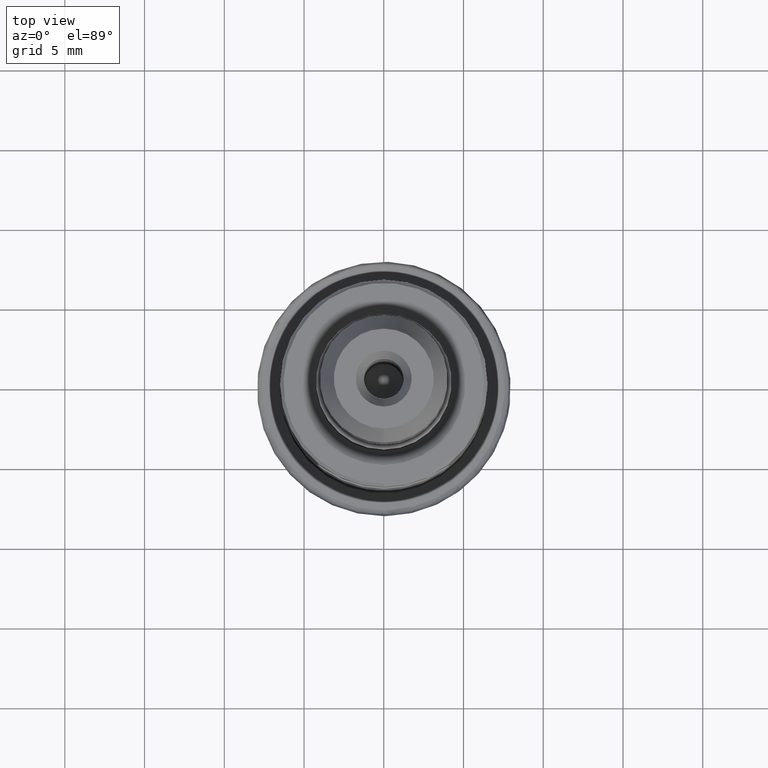
[diagram: clean part render]
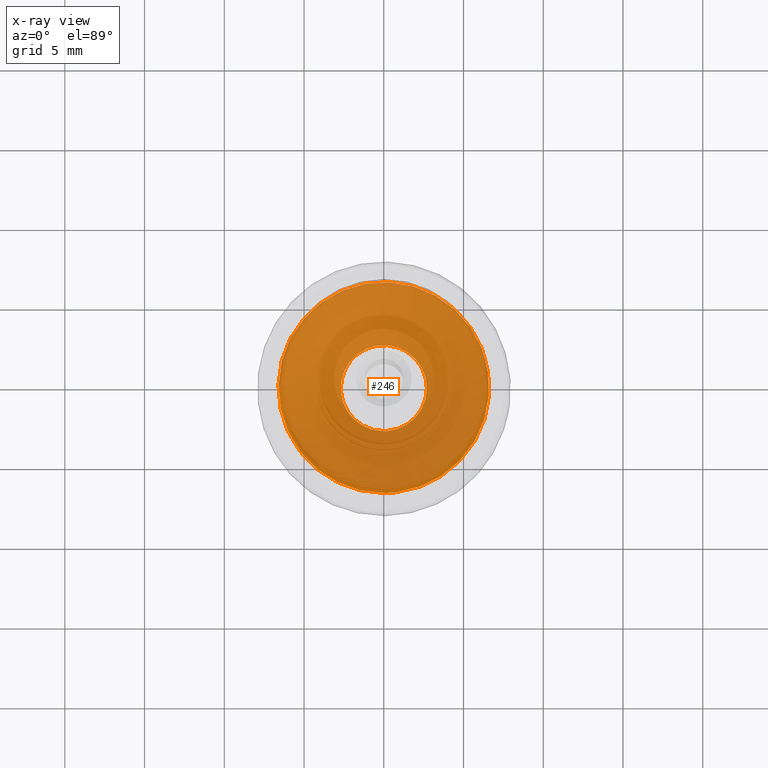
[diagram: x-ray — body ghosted, one internal face saturated and labeled with its STEP entity id]
A machine part, top view, then the same camera in x-ray: the body is ghosted and one INTERNAL B-rep face — a face not visible from any outside direction — is saturated and labeled: STEP entity #246.
In plain terms, the highlighted face is a SurfaceOfRevolution surface.
Its self-contained STEP definition (entity closure, byte-faithful):
#109=SURFACE_OF_REVOLUTION('',#745,#130);
#130=AXIS1_PLACEMENT('',#1488,#943);
#246=ADVANCED_FACE('',(#311,#312),#109,.F.);
#311=FACE_BOUND('',#397,.T.);
#312=FACE_BOUND('',#398,.T.);
#397=EDGE_LOOP('',(#519));
#398=EDGE_LOOP('',(#520));
#519=ORIENTED_EDGE('',*,*,#654,.T.);
#520=ORIENTED_EDGE('',*,*,#655,.F.);
#593=VERTEX_POINT('',#1467);
#594=VERTEX_POINT('',#1475);
#654=EDGE_CURVE('',#593,#593,#695,.T.);
#655=EDGE_CURVE('',#594,#594,#696,.T.);
#695=CIRCLE('',#808,2.7010062165819);
#696=CIRCLE('',#809,6.60815657088386);
#745=B_SPLINE_CURVE_WITH_KNOTS('',3,(#1476,#1477,#1478,#1479,#1480,#1481,
#1482,#1483,#1484,#1485,#1486,#1487),.UNSPECIFIED.,.F.,.F.,(4,1,1,1,1,1,
1,1,1,4),(0.,0.0557572126970923,0.0918984441691398,0.128039675641187,0.200322138585282,
0.344887064473473,0.489451990361663,0.634016916249853,0.778581842138043,
1.),.UNSPECIFIED.);
#808=AXIS2_PLACEMENT_3D('',#1466,#938,#939);
#809=AXIS2_PLACEMENT_3D('',#1474,#941,#942);
#938=DIRECTION('',(0.,1.17145536458252E-15,1.));
#939=DIRECTION('',(0.,-1.,1.28450165373709E-15));
#941=DIRECTION('',(0.,1.17145536458252E-15,1.));
#942=DIRECTION('',(0.,-1.,1.18130609621005E-15));
#943=DIRECTION('',(0.,1.17145536458252E-15,1.));
#1466=CARTESIAN_POINT('',(0.,6.05819133115085E-15,5.17150846230478));
#1467=CARTESIAN_POINT('',(0.,-2.7010062165819,5.17150846230478));
#1474=CARTESIAN_POINT('',(0.,8.57032390032212E-15,7.315962826613));
#1475=CARTESIAN_POINT('',(0.,-6.60815657088385,7.31596282661301));
#1476=CARTESIAN_POINT('',(6.60434306733403,-0.224461247561187,7.31596220446849));
#1477=CARTESIAN_POINT('',(6.53111167251089,-0.234425001275309,7.27809592998158));
#1478=CARTESIAN_POINT('',(6.41031966153852,-0.249340533990485,7.21561616456731));
#1479=CARTESIAN_POINT('',(6.24094639832849,-0.24660673946155,7.1279619547908));
#1480=CARTESIAN_POINT('',(6.05002708228983,-0.245455454221218,7.02883885349075));
#1481=CARTESIAN_POINT('',(5.71618612086678,-0.242648193295809,6.85478508185757));
#1482=CARTESIAN_POINT('',(5.24001252504669,-0.239273303584327,6.60472289145076));
#1483=CARTESIAN_POINT('',(4.67054613448605,-0.235752916903764,6.30097601423701));
#1484=CARTESIAN_POINT('',(4.10467026648473,-0.233381895149703,5.99059157171771));
#1485=CARTESIAN_POINT('',(3.44346989256278,-0.232140967911025,5.61631583469555));
#1486=CARTESIAN_POINT('',(2.97386695954029,-0.2325918708525,5.34038599904237));
#1487=CARTESIAN_POINT('',(2.69091955192191,-0.233209234590863,5.17150846230478));
#1488=CARTESIAN_POINT('',(0.,0.,0.));